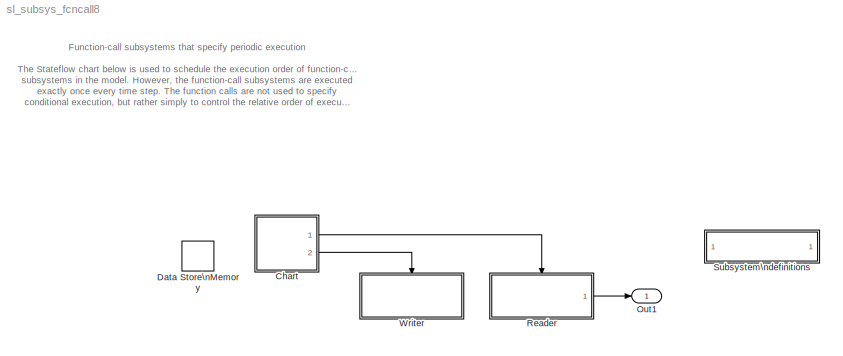
MODEL sl_subsys_fcncall8
KIND model
BLOCK [SubSystem]  Subsystem\ndefinitions
  MaskDisplay = disp('Subsystem\\ndefinitions')\n\n
  MaskIconFrame = on
  MaskIconOpaque = on
  MaskIconRotate = none
  MaskIconUnits = autoscale
  MinAlgLoopOccurrences = off
  OpenFcn = helpview([matlabroot,'/toolbox/simulink/simdemos/sl_subsys_definitions.html']);
  Ports = []
  PropExecContextAcrossSSBoundary = on
  RTWSystemCode = Auto
  TreatAsAtomicUnit = off
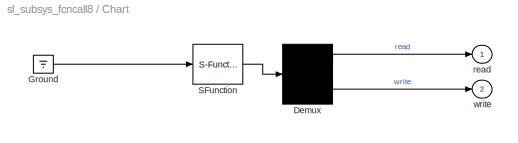
BLOCK [SubSystem] Chart
  MaskDescription = Stateflow diagram
  MaskDisplay = plot(sf('Private','sfblk','xIcon'),sf('Private','sfblk','yIcon'));text(0.5,0,sf('Private', 'sfblk', 'tIcon'),'HorizontalAl','Center','VerticalAl','Bottom');
  MaskIconFrame = off
  MaskIconOpaque = off
  MaskIconRotate = none
  MaskIconUnits = autoscale
  MaskSelfModifiable = on
  MaskType = Stateflow
  MinAlgLoopOccurrences = off
  Ports = [0, 2]
  PropExecContextAcrossSSBoundary = on
  RTWSystemCode = Auto
  TreatAsAtomicUnit = off
BLOCK [Demux] Chart/ Demux 
  Outputs = 2
  Ports = [1, 2]
BLOCK [Ground] Chart/ Ground 
BLOCK [S-Function] Chart/ SFunction 
  FunctionName = sf_sfun
  PortCounts = [1 1]
  Ports = [1, 1]
  Tag = Stateflow S-Function sl_subsys_fcncall8 1
BLOCK [Outport] Chart/read
  BusOutputAsStruct = off
  IconDisplay = Port number
BLOCK [Outport] Chart/write
  BusOutputAsStruct = off
  IconDisplay = Port number
  Port = 2
BLOCK [DataStoreMemory] Data Store\nMemory
  DataStoreName = A
  DialogController = Simulink.DDGSource
  InitialValue = 0
  RTWStateStorageClass = Auto
  ShowAdditionalParam = off
  VectorParams1D = on
BLOCK [Outport] Out1
  BusOutputAsStruct = off
  IconDisplay = Port number
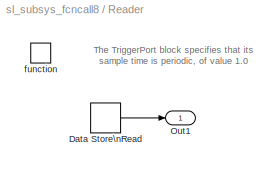
BLOCK [SubSystem] Reader
  MinAlgLoopOccurrences = off
  Ports = [0, 1, 0, 1]
  PropExecContextAcrossSSBoundary = on
  RTWSystemCode = Auto
  TreatAsAtomicUnit = on
BLOCK [DataStoreRead] Reader/Data Store\nRead
  DataStoreName = A
  DialogController = Simulink.DDGSource
  SampleTime = -1
BLOCK [Outport] Reader/Out1
  BusOutputAsStruct = off
  IconDisplay = Port number
BLOCK [TriggerPort] Reader/function
  Ports = []
  SampleTimeType = periodic
  StatesWhenEnabling = held
  TriggerType = function-call
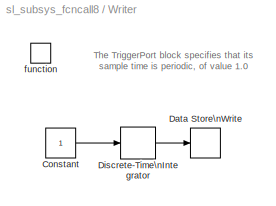
BLOCK [SubSystem] Writer
  MinAlgLoopOccurrences = off
  Ports = [0, 0, 0, 1]
  PropExecContextAcrossSSBoundary = on
  RTWSystemCode = Auto
  TreatAsAtomicUnit = on
BLOCK [Constant] Writer/Constant
BLOCK [DataStoreWrite] Writer/Data Store\nWrite
  DataStoreName = A
  DialogController = Simulink.DDGSource
  SampleTime = -1
BLOCK [DiscreteIntegrator] Writer/Discrete-Time\nIntegrator
  ExternalReset = none
  ICPrevOutput = DiscIntNeverNeededParam
  ICPrevScaledInput = DiscIntNeverNeededParam
  InitialConditionSource = internal
  IntegratorMethod = Integration: Backward Euler
  Ports = [1, 1]
  SampleTime = -1
BLOCK [TriggerPort] Writer/function
  Ports = []
  SampleTimeType = periodic
  StatesWhenEnabling = held
  TriggerType = function-call
ANNOTATION (root): Function-call subsystems that specify periodic execution\n\nThe Stateflow chart below is used to schedule the execution order of function-call \nsubsystems in the model. However, the function-call subsystems are executed \nexactly once every time step. The function calls are not used to specify \nconditional execution, but rather simply to control the relative order of execution \nof the subsystem...<+1195ch>
ANNOTATION Reader: The TriggerPort block specifies that its \nsample time is periodic, of value 1.0
ANNOTATION Writer: The TriggerPort block specifies that its \nsample time is periodic, of value 1.0
LINE Chart/ Demux :1 -> Chart/read:1
LINE Chart/ Demux :2 -> Chart/write:1
LINE Chart/ Ground :1 -> Chart/ SFunction :1
LINE Chart/ SFunction :1 -> Chart/ Demux :1
LINE Chart:1 -> Reader:trigger
LINE Chart:2 -> Writer:trigger
LINE Reader/Data Store\nRead:1 -> Reader/Out1:1
LINE Reader:1 -> Out1:1
LINE Writer/Constant:1 -> Writer/Discrete-Time\nIntegrator:1
LINE Writer/Discrete-Time\nIntegrator:1 -> Writer/Data Store\nWrite:1
CHART Chart states=0 transitions=1
